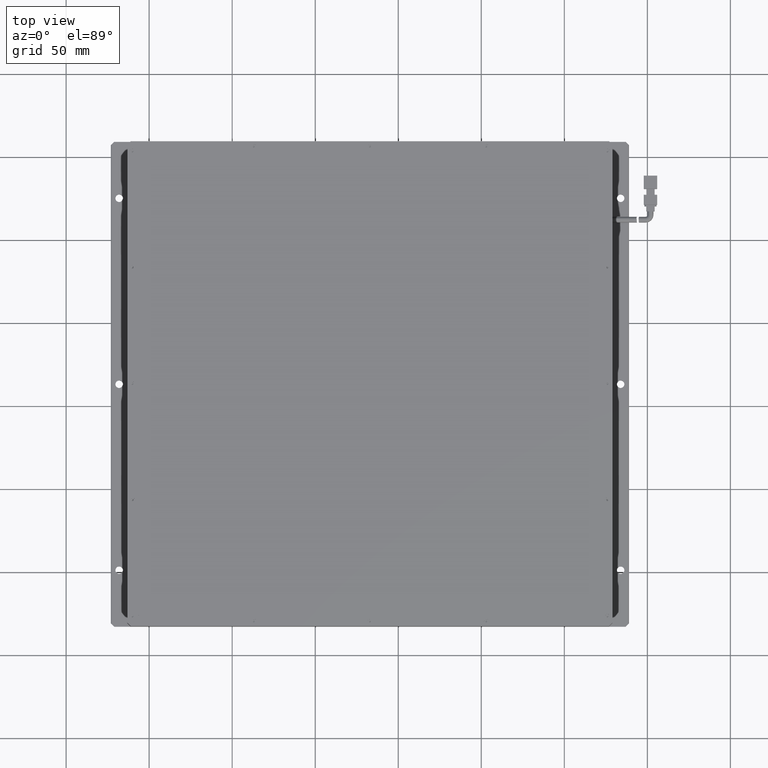
[diagram: clean part render]
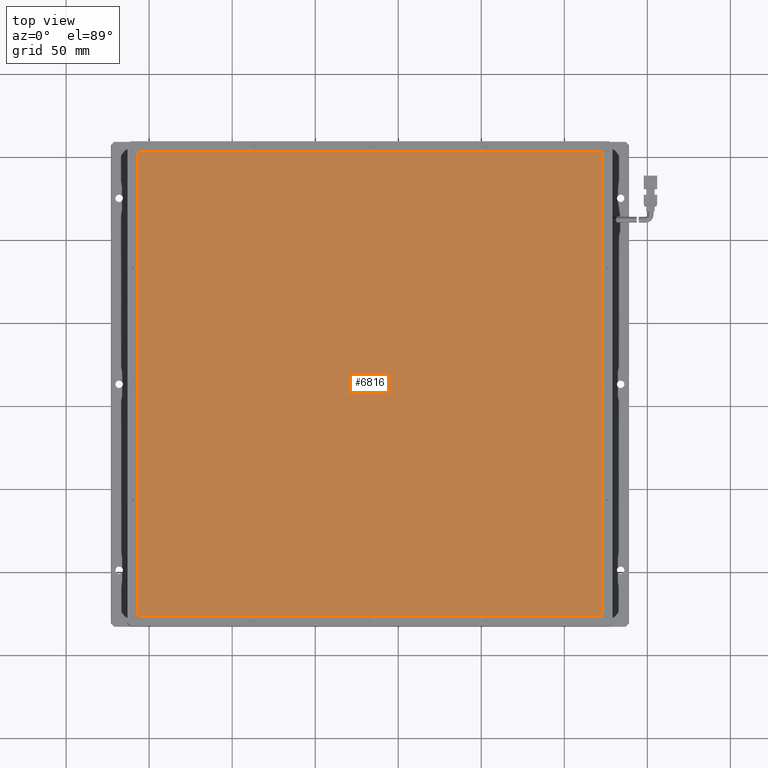
[diagram: same view with one face highlighted and labeled with its STEP entity id]
A machine part, top view. The second image highlights one B-rep face of the part: STEP entity #6816.
In plain terms, the highlighted planar face has unit normal (0, 0, 1).
Its self-contained STEP definition (entity closure, byte-faithful):
#102 = CIRCLE ( 'NONE', #1902, 2.000000000000001800 ) ;
#203 = ORIENTED_EDGE ( 'NONE', *, *, #14534, .T. ) ;
#449 = EDGE_CURVE ( 'NONE', #21635, #17570, #6718, .T. ) ;
#527 = ORIENTED_EDGE ( 'NONE', *, *, #7814, .T. ) ;
#1902 = AXIS2_PLACEMENT_3D ( 'NONE', #5348, #20340, #7495 ) ;
#2013 = EDGE_CURVE ( 'NONE', #19143, #25374, #16127, .T. ) ;
#2115 = DIRECTION ( 'NONE',  ( -0.0000000000000000000, -1.000000000000000000, -0.0000000000000000000 ) ) ;
#3315 = LINE ( 'NONE', #23324, #8984 ) ;
#3573 = VECTOR ( 'NONE', #2115, 1000.000000000000000 ) ;
#3903 = EDGE_CURVE ( 'NONE', #25061, #26245, #3315, .T. ) ;
#4505 = CARTESIAN_POINT ( 'NONE',  ( -105.0806771263419000, 151.2698045692266100, 10.59999999997180500 ) ) ;
#4971 = DIRECTION ( 'NONE',  ( 0.0000000000000000000, 0.0000000000000000000, 1.000000000000000000 ) ) ;
#4990 = ORIENTED_EDGE ( 'NONE', *, *, #20743, .T. ) ;
#5348 = CARTESIAN_POINT ( 'NONE',  ( 170.9193228736581300, -124.7301954307734100, 10.59999999997180500 ) ) ;
#5738 = CARTESIAN_POINT ( 'NONE',  ( -107.0806771263419000, -124.7301954307734100, 10.59999999997180500 ) ) ;
#6079 = CARTESIAN_POINT ( 'NONE',  ( -105.0806771263419000, 153.2698045692266100, 10.59999999997180500 ) ) ;
#6502 = VECTOR ( 'NONE', #10590, 1000.000000000000000 ) ;
#6665 = DIRECTION ( 'NONE',  ( 1.000000000000000000, 0.0000000000000000000, 0.0000000000000000000 ) ) ;
#6718 = CIRCLE ( 'NONE', #17949, 2.000000000000001800 ) ;
#6816 = ADVANCED_FACE ( 'NONE', ( #22672 ), #12791, .T. ) ;
#7050 = ORIENTED_EDGE ( 'NONE', *, *, #12641, .T. ) ;
#7169 = LINE ( 'NONE', #8344, #6502 ) ;
#7495 = DIRECTION ( 'NONE',  ( 1.000000000000000000, 0.0000000000000000000, 0.0000000000000000000 ) ) ;
#7571 = CARTESIAN_POINT ( 'NONE',  ( 170.9193228736581300, -126.7301954307734100, 10.59999999997180500 ) ) ;
#7814 = EDGE_CURVE ( 'NONE', #25374, #17372, #16230, .T. ) ;
#8344 = CARTESIAN_POINT ( 'NONE',  ( 170.9193228736581300, -126.7301954307734100, 10.59999999997180500 ) ) ;
#8465 = CARTESIAN_POINT ( 'NONE',  ( -105.0806771263419000, -126.7301954307734100, 10.59999999997180500 ) ) ;
#8984 = VECTOR ( 'NONE', #19160, 1000.000000000000000 ) ;
#10590 = DIRECTION ( 'NONE',  ( 1.000000000000000000, -0.0000000000000000000, -0.0000000000000000000 ) ) ;
#12199 = DIRECTION ( 'NONE',  ( 1.000000000000000000, 0.0000000000000000000, -0.0000000000000000000 ) ) ;
#12259 = DIRECTION ( 'NONE',  ( 0.0000000000000000000, 0.0000000000000000000, 1.000000000000000000 ) ) ;
#12299 = CARTESIAN_POINT ( 'NONE',  ( 170.9193228736581300, -124.7301954307734100, 10.59999999997180500 ) ) ;
#12625 = EDGE_LOOP ( 'NONE', ( #4990, #14524, #203, #27289, #527, #22959, #19709, #7050 ) ) ;
#12641 = EDGE_CURVE ( 'NONE', #17570, #22484, #7169, .T. ) ;
#12791 = PLANE ( 'NONE',  #25671 ) ;
#14524 = ORIENTED_EDGE ( 'NONE', *, *, #3903, .T. ) ;
#14534 = EDGE_CURVE ( 'NONE', #26245, #19143, #27090, .T. ) ;
#14920 = EDGE_CURVE ( 'NONE', #17372, #21635, #14982, .T. ) ;
#14971 = CARTESIAN_POINT ( 'NONE',  ( -107.0806771263419000, -124.7301954307734100, 10.59999999997180500 ) ) ;
#14982 = LINE ( 'NONE', #14971, #3573 ) ;
#16127 = LINE ( 'NONE', #16689, #21765 ) ;
#16230 = CIRCLE ( 'NONE', #19634, 2.000000000000001800 ) ;
#16417 = DIRECTION ( 'NONE',  ( -1.000000000000000000, -0.0000000000000000000, -0.0000000000000000000 ) ) ;
#16689 = CARTESIAN_POINT ( 'NONE',  ( -105.0806771263419000, 153.2698045692266100, 10.59999999997180500 ) ) ;
#17372 = VERTEX_POINT ( 'NONE', #18375 ) ;
#17570 = VERTEX_POINT ( 'NONE', #8465 ) ;
#17825 = CARTESIAN_POINT ( 'NONE',  ( 170.9193228736581300, 153.2698045692266100, 10.59999999997180500 ) ) ;
#17827 = CARTESIAN_POINT ( 'NONE',  ( 170.9193228736581300, 151.2698045692266100, 10.59999999997180500 ) ) ;
#17949 = AXIS2_PLACEMENT_3D ( 'NONE', #26839, #25534, #25506 ) ;
#18375 = CARTESIAN_POINT ( 'NONE',  ( -107.0806771263419000, 151.2698045692266100, 10.59999999997180500 ) ) ;
#19143 = VERTEX_POINT ( 'NONE', #17825 ) ;
#19160 = DIRECTION ( 'NONE',  ( -0.0000000000000000000, 1.000000000000000000, -0.0000000000000000000 ) ) ;
#19512 = DIRECTION ( 'NONE',  ( 0.0000000000000000000, 0.0000000000000000000, 1.000000000000000000 ) ) ;
#19634 = AXIS2_PLACEMENT_3D ( 'NONE', #4505, #19512, #6665 ) ;
#19709 = ORIENTED_EDGE ( 'NONE', *, *, #449, .T. ) ;
#19976 = DIRECTION ( 'NONE',  ( 1.000000000000000000, 0.0000000000000000000, 0.0000000000000000000 ) ) ;
#20340 = DIRECTION ( 'NONE',  ( 0.0000000000000000000, 0.0000000000000000000, 1.000000000000000000 ) ) ;
#20743 = EDGE_CURVE ( 'NONE', #22484, #25061, #102, .T. ) ;
#21635 = VERTEX_POINT ( 'NONE', #5738 ) ;
#21765 = VECTOR ( 'NONE', #16417, 1000.000000000000000 ) ;
#22484 = VERTEX_POINT ( 'NONE', #7571 ) ;
#22672 = FACE_OUTER_BOUND ( 'NONE', #12625, .T. ) ;
#22959 = ORIENTED_EDGE ( 'NONE', *, *, #14920, .T. ) ;
#23324 = CARTESIAN_POINT ( 'NONE',  ( 172.9193228736581300, 151.2698045692266100, 10.59999999997180500 ) ) ;
#24472 = AXIS2_PLACEMENT_3D ( 'NONE', #17827, #4971, #19976 ) ;
#25061 = VERTEX_POINT ( 'NONE', #26010 ) ;
#25374 = VERTEX_POINT ( 'NONE', #6079 ) ;
#25506 = DIRECTION ( 'NONE',  ( 1.000000000000000000, 0.0000000000000000000, 0.0000000000000000000 ) ) ;
#25534 = DIRECTION ( 'NONE',  ( 0.0000000000000000000, 0.0000000000000000000, 1.000000000000000000 ) ) ;
#25671 = AXIS2_PLACEMENT_3D ( 'NONE', #12299, #12259, #12199 ) ;
#26010 = CARTESIAN_POINT ( 'NONE',  ( 172.9193228736581300, -124.7301954307734100, 10.59999999997180500 ) ) ;
#26245 = VERTEX_POINT ( 'NONE', #26520 ) ;
#26520 = CARTESIAN_POINT ( 'NONE',  ( 172.9193228736581300, 151.2698045692266100, 10.59999999997180500 ) ) ;
#26839 = CARTESIAN_POINT ( 'NONE',  ( -105.0806771263419000, -124.7301954307734100, 10.59999999997180500 ) ) ;
#27090 = CIRCLE ( 'NONE', #24472, 2.000000000000001800 ) ;
#27289 = ORIENTED_EDGE ( 'NONE', *, *, #2013, .T. ) ;